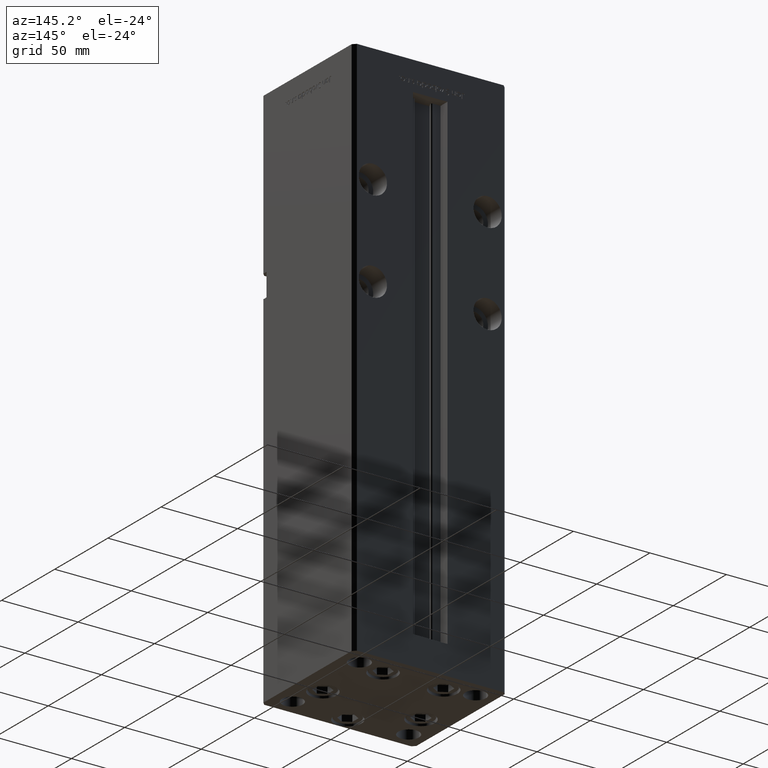
[diagram: clean part render]
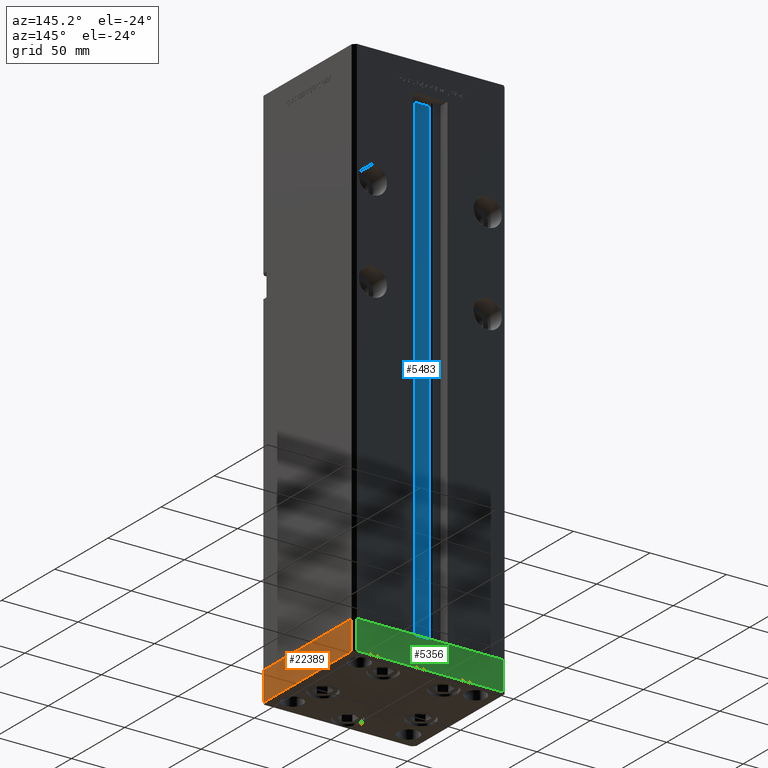
[diagram: same view with three faces highlighted in distinct colors, each labeled with its STEP entity id]
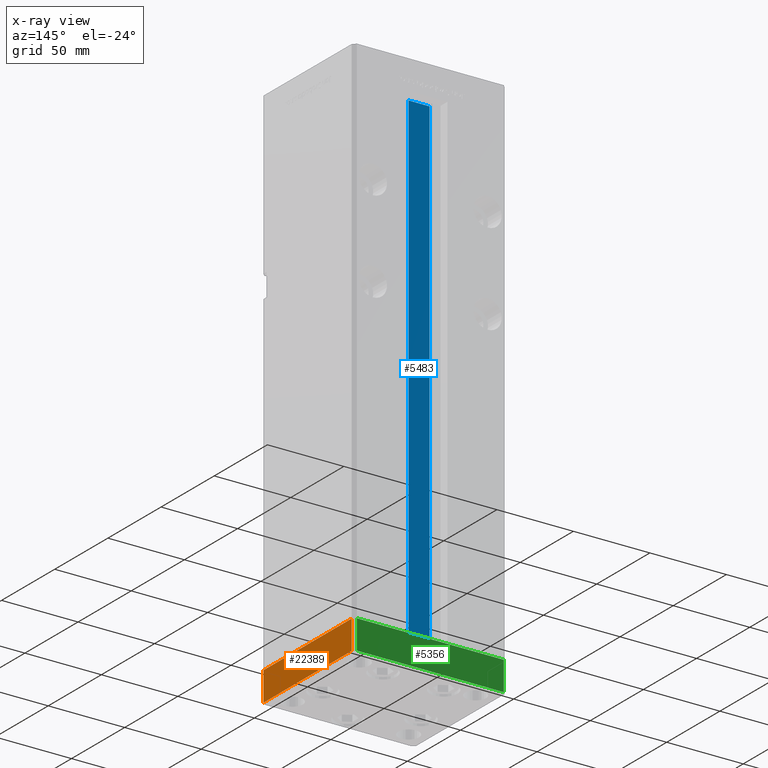
[diagram: x-ray of the same camera — body ghosted, the three highlighted faces saturated]
A machine part, auxiliary view with three faces highlighted in distinct colors.
The next image is the same camera in x-ray (body ghosted, the three faces saturated) — at least one of them is partly hidden behind the body in this view.
Their STEP definitions:

[orange] entity #22389 — the highlighted planar face has unit normal (1, 0, 0).
#2750 = CARTESIAN_POINT ( 'NONE',  ( -50.00000000000000711, 41.49999999999995026, -19.00000000000000000 ) ) ;
#3187 = CARTESIAN_POINT ( 'NONE',  ( -50.00000000000000711, 41.49999999999995026, -19.00000000000000000 ) ) ;
#3737 = EDGE_CURVE ( 'NONE', #31317, #15803, #5539, .T. ) ;
#4981 = VECTOR ( 'NONE', #8352, 1000.000000000000000 ) ;
#5539 = LINE ( 'NONE', #38063, #47157 ) ;
#5844 = EDGE_LOOP ( 'NONE', ( #32413, #20112, #42264, #52427 ) ) ;
#7151 = VERTEX_POINT ( 'NONE', #19169 ) ;
#8088 = CARTESIAN_POINT ( 'NONE',  ( -50.00000000000000000, -41.50000000000000000, -19.00000000000000000 ) ) ;
#8352 = DIRECTION ( 'NONE',  ( 0.000000000000000000, 0.000000000000000000, 1.000000000000000000 ) ) ;
#10939 = DIRECTION ( 'NONE',  ( 8.360113137237628665E-17, -1.000000000000000000, 0.000000000000000000 ) ) ;
#15803 = VERTEX_POINT ( 'NONE', #18644 ) ;
#16069 = LINE ( 'NONE', #3187, #30885 ) ;
#17649 = DIRECTION ( 'NONE',  ( 8.360113137237628665E-17, -1.000000000000000000, 0.000000000000000000 ) ) ;
#18644 = CARTESIAN_POINT ( 'NONE',  ( -50.00000000000000000, -41.50000000000000000, -19.00000000000000000 ) ) ;
#19169 = CARTESIAN_POINT ( 'NONE',  ( -50.00000000000000711, 41.49999999999995026, 0.000000000000000000 ) ) ;
#19584 = DIRECTION ( 'NONE',  ( 0.000000000000000000, 0.000000000000000000, 1.000000000000000000 ) ) ;
#20112 = ORIENTED_EDGE ( 'NONE', *, *, #36726, .F. ) ;
#22389 = ADVANCED_FACE ( 'NONE', ( #37744 ), #29700, .T. ) ;
#23816 = LINE ( 'NONE', #48008, #34388 ) ;
#24482 = LINE ( 'NONE', #8088, #4981 ) ;
#25946 = CARTESIAN_POINT ( 'NONE',  ( -50.00000000000000711, 41.49999999999995026, -19.00000000000000000 ) ) ;
#26524 = VERTEX_POINT ( 'NONE', #37140 ) ;
#27046 = AXIS2_PLACEMENT_3D ( 'NONE', #25946, #39347, #39870 ) ;
#29700 = PLANE ( 'NONE',  #27046 ) ;
#30885 = VECTOR ( 'NONE', #19584, 1000.000000000000000 ) ;
#31317 = VERTEX_POINT ( 'NONE', #2750 ) ;
#31472 = EDGE_CURVE ( 'NONE', #15803, #26524, #24482, .T. ) ;
#32413 = ORIENTED_EDGE ( 'NONE', *, *, #47251, .F. ) ;
#34388 = VECTOR ( 'NONE', #10939, 1000.000000000000000 ) ;
#36726 = EDGE_CURVE ( 'NONE', #31317, #7151, #16069, .T. ) ;
#37140 = CARTESIAN_POINT ( 'NONE',  ( -50.00000000000000000, -41.50000000000000000, 0.000000000000000000 ) ) ;
#37744 = FACE_OUTER_BOUND ( 'NONE', #5844, .T. ) ;
#38063 = CARTESIAN_POINT ( 'NONE',  ( -50.00000000000000711, 41.49999999999995026, -19.00000000000000000 ) ) ;
#39347 = DIRECTION ( 'NONE',  ( -1.000000000000000000, -8.360113137237628665E-17, 0.000000000000000000 ) ) ;
#39870 = DIRECTION ( 'NONE',  ( 8.360113137237628665E-17, -1.000000000000000000, 0.000000000000000000 ) ) ;
#42264 = ORIENTED_EDGE ( 'NONE', *, *, #3737, .T. ) ;
#47157 = VECTOR ( 'NONE', #17649, 1000.000000000000000 ) ;
#47251 = EDGE_CURVE ( 'NONE', #7151, #26524, #23816, .T. ) ;
#48008 = CARTESIAN_POINT ( 'NONE',  ( -50.00000000000000711, 41.49999999999995026, 0.000000000000000000 ) ) ;
#52427 = ORIENTED_EDGE ( 'NONE', *, *, #31472, .T. ) ;

[blue] entity #5483 — the highlighted planar face has unit normal (0, -1, 0).
#2241 = VERTEX_POINT ( 'NONE', #31245 ) ;
#3903 = CARTESIAN_POINT ( 'NONE',  ( 6.876153656360465050, 32.99999999999986500, 0.000000000000000000 ) ) ;
#5100 = VECTOR ( 'NONE', #6325, 1000.000000000000000 ) ;
#5483 = ADVANCED_FACE ( 'NONE', ( #26320 ), #42432, .F. ) ;
#5885 = CARTESIAN_POINT ( 'NONE',  ( 6.876153656360465050, 32.99999999999986500, 318.5000000000000000 ) ) ;
#6325 = DIRECTION ( 'NONE',  ( -1.000000000000000000, 0.000000000000000000, 0.000000000000000000 ) ) ;
#8125 = CARTESIAN_POINT ( 'NONE',  ( -6.876153656360465050, 32.99999999999986500, 0.000000000000000000 ) ) ;
#9941 = LINE ( 'NONE', #47536, #18996 ) ;
#13675 = DIRECTION ( 'NONE',  ( 0.000000000000000000, 0.000000000000000000, -1.000000000000000000 ) ) ;
#14593 = EDGE_CURVE ( 'NONE', #24425, #29721, #48097, .T. ) ;
#16292 = ORIENTED_EDGE ( 'NONE', *, *, #35470, .F. ) ;
#17028 = EDGE_CURVE ( 'NONE', #2241, #40324, #50045, .T. ) ;
#17156 = AXIS2_PLACEMENT_3D ( 'NONE', #17713, #25793, #13675 ) ;
#17713 = CARTESIAN_POINT ( 'NONE',  ( 6.876153656360465050, 32.99999999999986500, 0.000000000000000000 ) ) ;
#18996 = VECTOR ( 'NONE', #35430, 1000.000000000000000 ) ;
#19614 = CARTESIAN_POINT ( 'NONE',  ( 6.876153656360465050, 32.99999999999986500, 0.000000000000000000 ) ) ;
#22461 = CARTESIAN_POINT ( 'NONE',  ( 0.000000000000000000, 32.99999999999986500, 318.5000000000000000 ) ) ;
#22698 = VECTOR ( 'NONE', #24520, 1000.000000000000000 ) ;
#23837 = CARTESIAN_POINT ( 'NONE',  ( -6.876153656360465050, 32.99999999999986500, 318.5000000000000000 ) ) ;
#24425 = VERTEX_POINT ( 'NONE', #3903 ) ;
#24520 = DIRECTION ( 'NONE',  ( -0.000000000000000000, -0.000000000000000000, 1.000000000000000000 ) ) ;
#25793 = DIRECTION ( 'NONE',  ( 0.000000000000000000, -1.000000000000000000, -0.000000000000000000 ) ) ;
#26320 = FACE_OUTER_BOUND ( 'NONE', #29871, .T. ) ;
#29721 = VERTEX_POINT ( 'NONE', #5885 ) ;
#29871 = EDGE_LOOP ( 'NONE', ( #37479, #35659, #35120, #16292 ) ) ;
#31245 = CARTESIAN_POINT ( 'NONE',  ( -6.876153656360465050, 32.99999999999986500, 0.000000000000000000 ) ) ;
#31248 = VECTOR ( 'NONE', #40286, 1000.000000000000000 ) ;
#34809 = LINE ( 'NONE', #22461, #5100 ) ;
#35120 = ORIENTED_EDGE ( 'NONE', *, *, #17028, .T. ) ;
#35430 = DIRECTION ( 'NONE',  ( 1.000000000000000000, -0.000000000000000000, -0.000000000000000000 ) ) ;
#35470 = EDGE_CURVE ( 'NONE', #29721, #40324, #34809, .T. ) ;
#35659 = ORIENTED_EDGE ( 'NONE', *, *, #43590, .F. ) ;
#37479 = ORIENTED_EDGE ( 'NONE', *, *, #14593, .F. ) ;
#40286 = DIRECTION ( 'NONE',  ( -0.000000000000000000, -0.000000000000000000, 1.000000000000000000 ) ) ;
#40324 = VERTEX_POINT ( 'NONE', #23837 ) ;
#42432 = PLANE ( 'NONE',  #17156 ) ;
#43590 = EDGE_CURVE ( 'NONE', #2241, #24425, #9941, .T. ) ;
#47536 = CARTESIAN_POINT ( 'NONE',  ( 6.876153656360465050, 32.99999999999986500, 0.000000000000000000 ) ) ;
#48097 = LINE ( 'NONE', #19614, #31248 ) ;
#50045 = LINE ( 'NONE', #8125, #22698 ) ;

[green] entity #5356 — the highlighted planar face has unit normal (-0, 1, 0).
#503 = FACE_OUTER_BOUND ( 'NONE', #25317, .T. ) ;
#1153 = CARTESIAN_POINT ( 'NONE',  ( 47.99999999999990763, 43.50000000000000000, 0.000000000000000000 ) ) ;
#1341 = VERTEX_POINT ( 'NONE', #7119 ) ;
#1440 = ORIENTED_EDGE ( 'NONE', *, *, #52316, .T. ) ;
#5356 = ADVANCED_FACE ( 'NONE', ( #503 ), #19172, .T. ) ;
#5394 = LINE ( 'NONE', #50014, #39111 ) ;
#5821 = DIRECTION ( 'NONE',  ( -1.000000000000000000, -3.614007241618350743E-16, 0.000000000000000000 ) ) ;
#6627 = CARTESIAN_POINT ( 'NONE',  ( 47.99999999999990763, 43.50000000000000000, -19.00000000000000000 ) ) ;
#7119 = CARTESIAN_POINT ( 'NONE',  ( -48.00000000000000711, 43.49999999999996447, -19.00000000000000000 ) ) ;
#7950 = VECTOR ( 'NONE', #9388, 1000.000000000000000 ) ;
#9388 = DIRECTION ( 'NONE',  ( 0.000000000000000000, 0.000000000000000000, 1.000000000000000000 ) ) ;
#9795 = EDGE_CURVE ( 'NONE', #27177, #1341, #9876, .T. ) ;
#9876 = LINE ( 'NONE', #42646, #11971 ) ;
#11971 = VECTOR ( 'NONE', #5821, 1000.000000000000000 ) ;
#13151 = LINE ( 'NONE', #50232, #7950 ) ;
#14307 = ORIENTED_EDGE ( 'NONE', *, *, #9795, .T. ) ;
#15388 = DIRECTION ( 'NONE',  ( -3.614007241618350743E-16, 1.000000000000000000, 0.000000000000000000 ) ) ;
#19172 = PLANE ( 'NONE',  #32560 ) ;
#19775 = EDGE_CURVE ( 'NONE', #27177, #47047, #5394, .T. ) ;
#21446 = CARTESIAN_POINT ( 'NONE',  ( 47.99999999999990763, 43.50000000000000000, 0.000000000000000000 ) ) ;
#21592 = DIRECTION ( 'NONE',  ( -1.000000000000000000, -3.614007241618350743E-16, 0.000000000000000000 ) ) ;
#22291 = VECTOR ( 'NONE', #21592, 1000.000000000000000 ) ;
#25317 = EDGE_LOOP ( 'NONE', ( #39399, #46397, #14307, #1440 ) ) ;
#27177 = VERTEX_POINT ( 'NONE', #6627 ) ;
#27474 = CARTESIAN_POINT ( 'NONE',  ( -48.00000000000000711, 43.49999999999996447, 0.000000000000000000 ) ) ;
#32485 = DIRECTION ( 'NONE',  ( -1.000000000000000000, -3.614007241618350743E-16, 0.000000000000000000 ) ) ;
#32560 = AXIS2_PLACEMENT_3D ( 'NONE', #49418, #15388, #32485 ) ;
#37911 = DIRECTION ( 'NONE',  ( 0.000000000000000000, 0.000000000000000000, 1.000000000000000000 ) ) ;
#39111 = VECTOR ( 'NONE', #37911, 1000.000000000000000 ) ;
#39399 = ORIENTED_EDGE ( 'NONE', *, *, #39592, .F. ) ;
#39592 = EDGE_CURVE ( 'NONE', #47047, #49162, #45762, .T. ) ;
#42646 = CARTESIAN_POINT ( 'NONE',  ( 47.99999999999990763, 43.50000000000000000, -19.00000000000000000 ) ) ;
#45762 = LINE ( 'NONE', #1153, #22291 ) ;
#46397 = ORIENTED_EDGE ( 'NONE', *, *, #19775, .F. ) ;
#47047 = VERTEX_POINT ( 'NONE', #21446 ) ;
#49162 = VERTEX_POINT ( 'NONE', #27474 ) ;
#49418 = CARTESIAN_POINT ( 'NONE',  ( 47.99999999999990763, 43.50000000000000000, -19.00000000000000000 ) ) ;
#50014 = CARTESIAN_POINT ( 'NONE',  ( 47.99999999999990763, 43.50000000000000000, -19.00000000000000000 ) ) ;
#50232 = CARTESIAN_POINT ( 'NONE',  ( -48.00000000000000711, 43.49999999999996447, -19.00000000000000000 ) ) ;
#52316 = EDGE_CURVE ( 'NONE', #1341, #49162, #13151, .T. ) ;